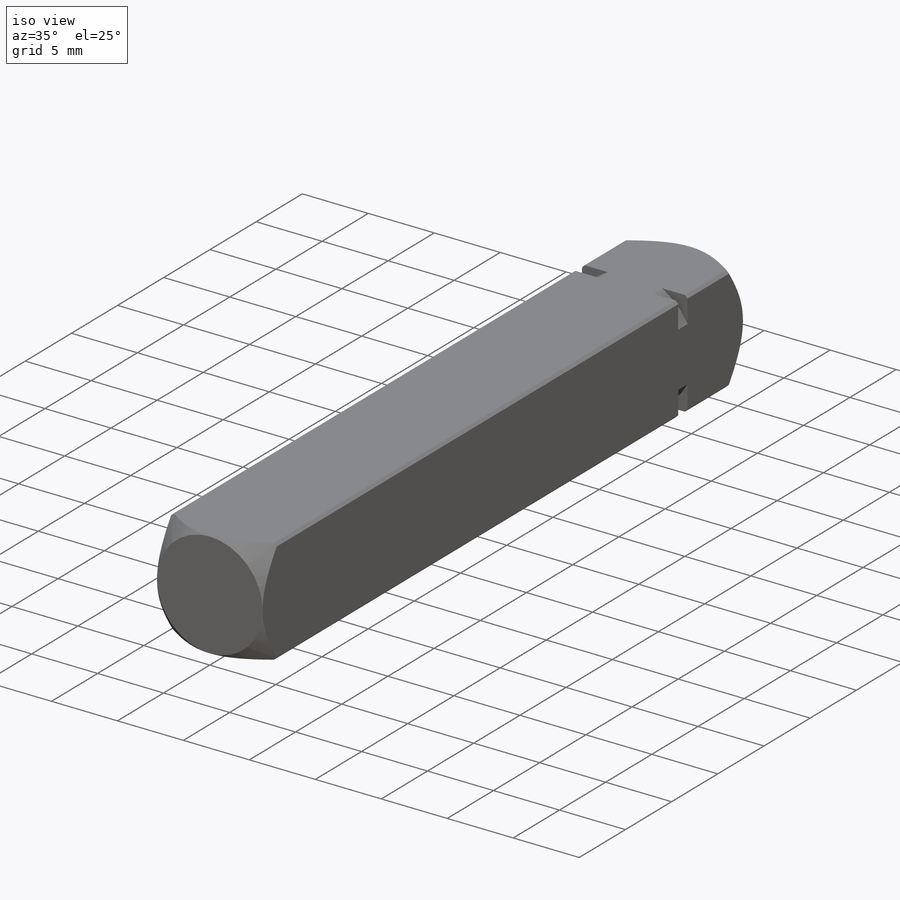
[diagram: iso view]
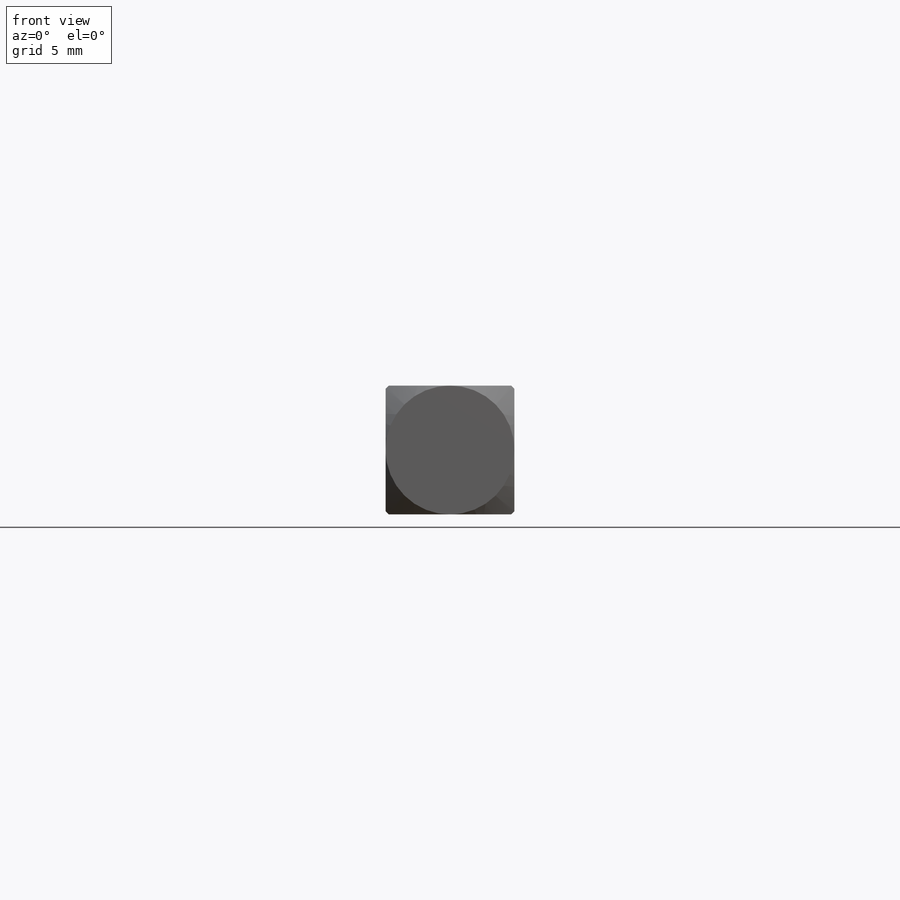
[diagram: front view]
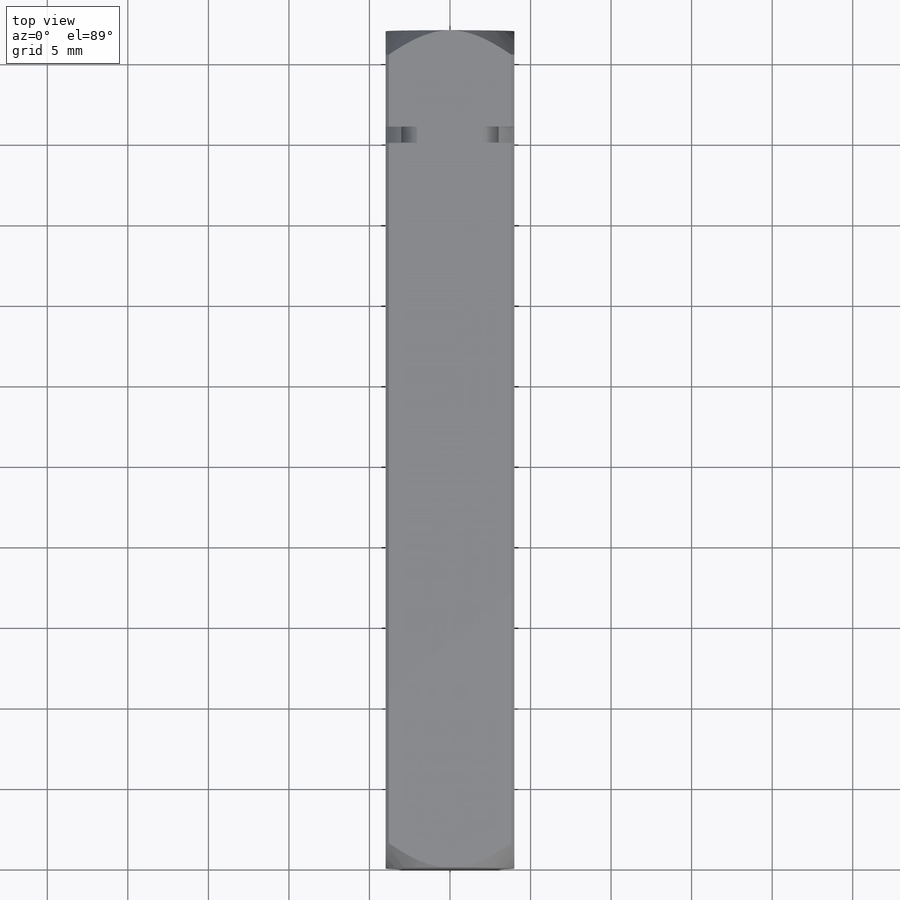
[diagram: top view]
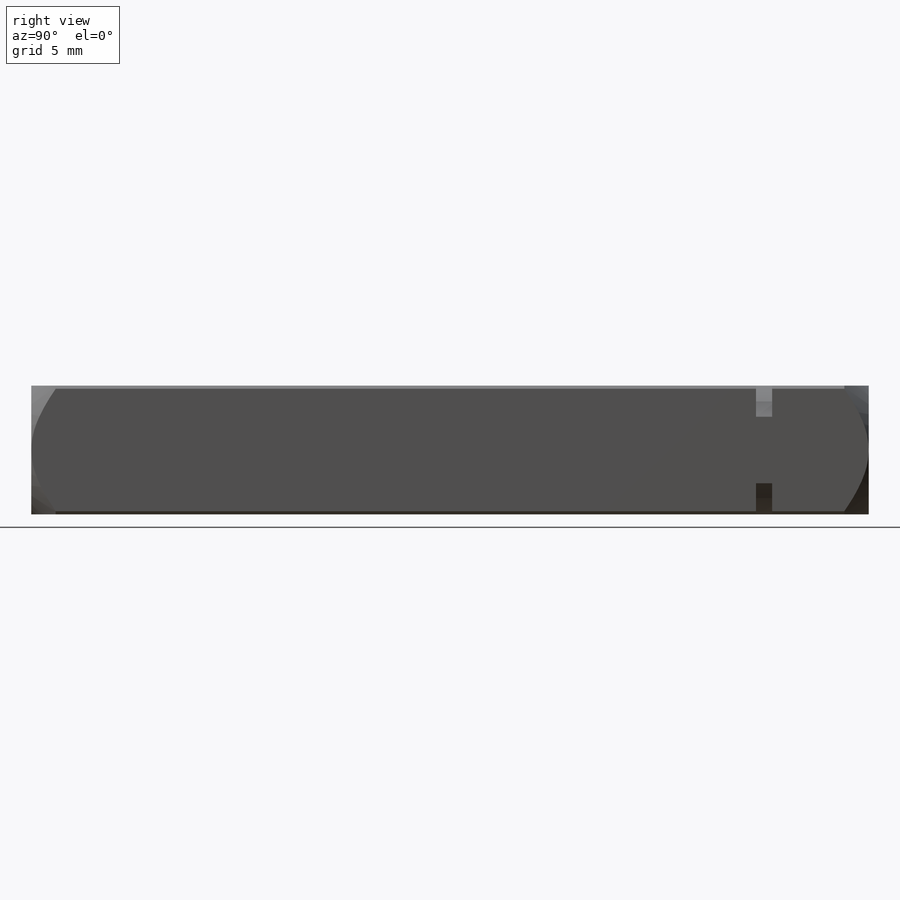
[diagram: right view]
SOLIDWORKS PART (.sldprt)
format: sldprt  version: not decoded by parser v0  size: 257,536 bytes
history: native  units: mm
features: plane x4, sketch x4, cut_extrude x3, material x1, extrude x1, chamfer x1 + 1 further entry (+10 scaffold rows collapsed)
feature tree (25):
  scaffold x10  (default folders/planes/origin — collapsed)
  material  "Matériau <non spécifié>"
  "Corps de surface"
  plane  "Face"
  plane  "Dessus"
  plane  "Droite"
  sketch  "Esquisse1"  dims[D1=8.0mm D2=8.0mm]
  extrude  "Base-Extrusion"  Depth=52mm
  sketch  "Esquisse2"
  cut_extrude  "Enlèv. mat.-Extru.1"  [1 undecoded]
  chamfer  "Chanfrein1"  Distance=0.2mm Angle=45deg
  sketch  "Esquisse3"  dims[D1=8.0mm]
  cut_extrude  "Enlèv. mat.-Extru.2"  [1 undecoded]
  plane  "Plan1"  Offset=6mm
  sketch  "Esquisse5"  dims[D1=9.0mm]
  cut_extrude  "Enlèv. mat.-Extru.4"  Depth=1mm
decode coverage: 6 of 9 modeling features carry decoded parameters; 1 rows unclassified (native names shown)
note: 2 parameter values undecoded
note: suppression state not decoded; provenance and decode notes live in map.json
